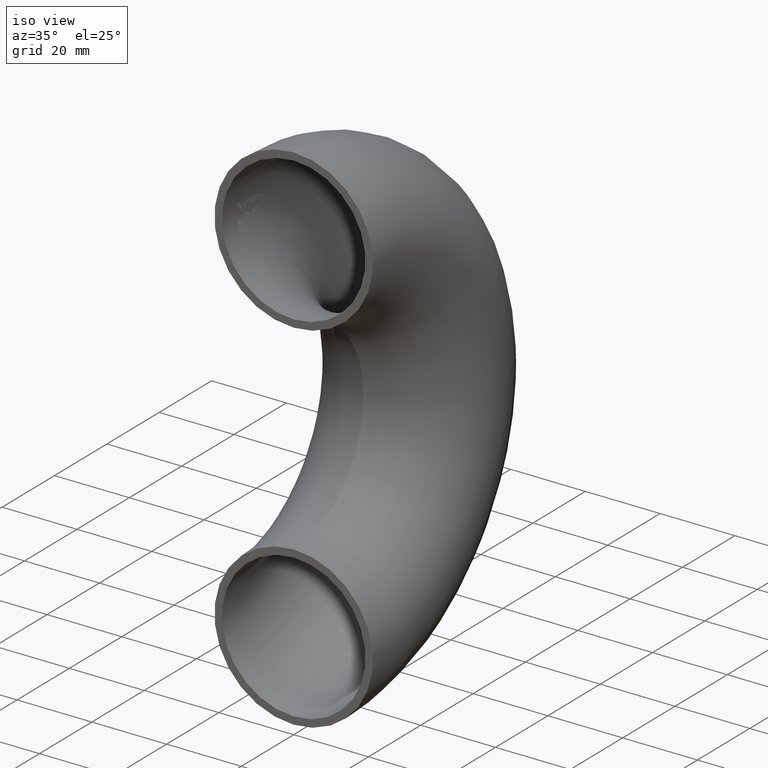
[diagram: clean part render]
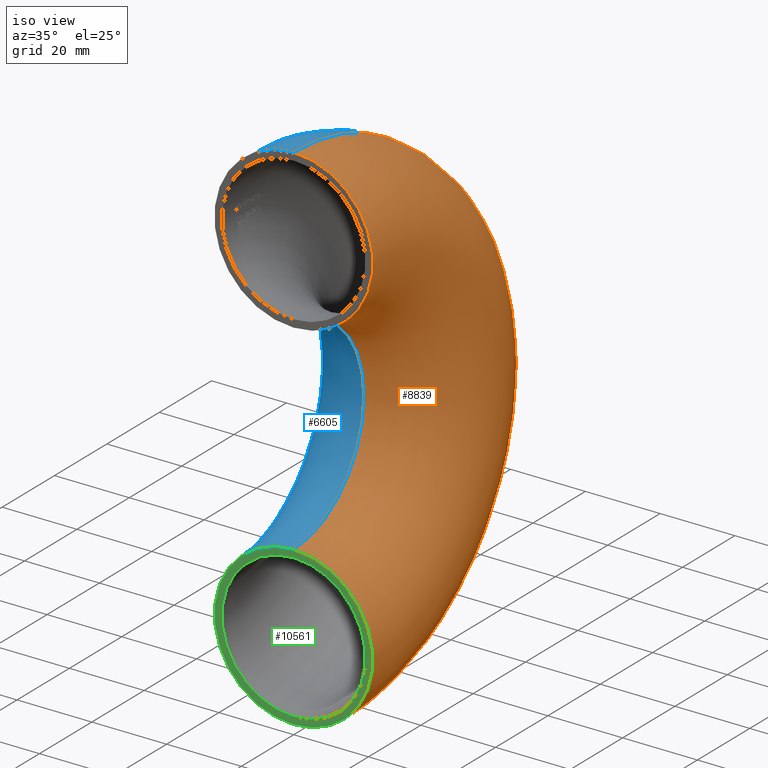
[diagram: same view with three faces highlighted in distinct colors, each labeled with its STEP entity id]
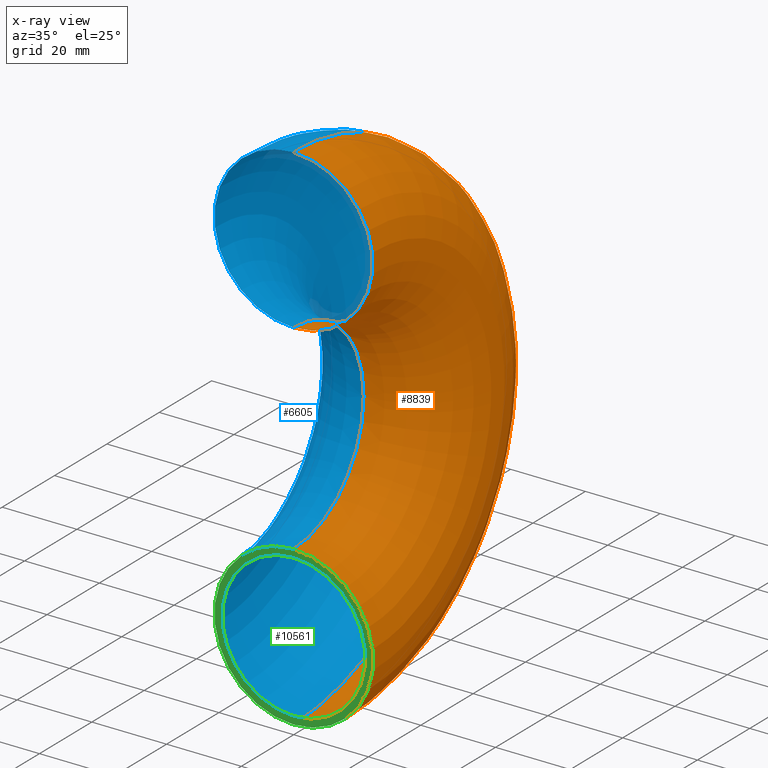
[diagram: x-ray of the same camera — body ghosted, the three highlighted faces saturated]
A machine part, iso view with three faces highlighted in distinct colors.
The next image is the same camera in x-ray (body ghosted, the three faces saturated) — at least one of them is partly hidden behind the body in this view.
Their STEP definitions:

[orange] entity #8839 — the highlighted toroidal blend (fillet) surface has major radius 48 mm and minor (blend) radius 21.2 mm.
#10 = DIRECTION ( 'NONE',  ( -1.000000000000000000, -0.0000000000000000000, -0.0000000000000000000 ) ) ;
#110 = DIRECTION ( 'NONE',  ( 0.0000000000000000000, 0.0000000000000000000, 1.000000000000000000 ) ) ;
#444 = CIRCLE ( 'NONE', #1873, 69.20000000000000300 ) ;
#579 = EDGE_CURVE ( 'NONE', #6747, #1486, #5435, .T. ) ;
#657 = DIRECTION ( 'NONE',  ( 0.0000000000000000000, 0.0000000000000000000, 1.000000000000000000 ) ) ;
#784 = AXIS2_PLACEMENT_3D ( 'NONE', #1788, #3397, #110 ) ;
#1275 = CARTESIAN_POINT ( 'NONE',  ( 0.0000000000000000000, 8.474555850099686100E-015, 69.20000000000000300 ) ) ;
#1328 = CARTESIAN_POINT ( 'NONE',  ( 0.0000000000000000000, 5.878304635907295800E-015, 48.00000000000000000 ) ) ;
#1486 = VERTEX_POINT ( 'NONE', #1275 ) ;
#1788 = CARTESIAN_POINT ( 'NONE',  ( 0.0000000000000000000, 0.0000000000000000000, -48.00000000000000000 ) ) ;
#1873 = AXIS2_PLACEMENT_3D ( 'NONE', #6058, #1886, #8546 ) ;
#1886 = DIRECTION ( 'NONE',  ( -1.000000000000000000, -0.0000000000000000000, -0.0000000000000000000 ) ) ;
#2220 = AXIS2_PLACEMENT_3D ( 'NONE', #6431, #3253, #657 ) ;
#2289 = ORIENTED_EDGE ( 'NONE', *, *, #9533, .F. ) ;
#2656 = ORIENTED_EDGE ( 'NONE', *, *, #579, .F. ) ;
#2867 = TOROIDAL_SURFACE ( 'NONE', #8431, 48.00000000000000000, 21.19999999999999900 ) ;
#3253 = DIRECTION ( 'NONE',  ( -1.000000000000000000, -0.0000000000000000000, -0.0000000000000000000 ) ) ;
#3282 = CARTESIAN_POINT ( 'NONE',  ( 0.0000000000000000000, 0.0000000000000000000, -26.80000000000000100 ) ) ;
#3397 = DIRECTION ( 'NONE',  ( 0.0000000000000000000, 1.000000000000000000, 0.0000000000000000000 ) ) ;
#3644 = FACE_OUTER_BOUND ( 'NONE', #5150, .T. ) ;
#3756 = CIRCLE ( 'NONE', #2220, 26.80000000000000100 ) ;
#4772 = CARTESIAN_POINT ( 'NONE',  ( 0.0000000000000000000, 3.282053421714906600E-015, 26.80000000000000100 ) ) ;
#5150 = EDGE_LOOP ( 'NONE', ( #2289, #2656, #9439, #8908 ) ) ;
#5435 = CIRCLE ( 'NONE', #5785, 21.19999999999999900 ) ;
#5444 = DIRECTION ( 'NONE',  ( 0.0000000000000000000, -1.000000000000000000, 1.224646799147353200E-016 ) ) ;
#5785 = AXIS2_PLACEMENT_3D ( 'NONE', #1328, #5444, #10291 ) ;
#6058 = CARTESIAN_POINT ( 'NONE',  ( 0.0000000000000000000, 0.0000000000000000000, 0.0000000000000000000 ) ) ;
#6431 = CARTESIAN_POINT ( 'NONE',  ( 2.596251214192388800E-015, 0.0000000000000000000, 0.0000000000000000000 ) ) ;
#6617 = CARTESIAN_POINT ( 'NONE',  ( 0.0000000000000000000, 0.0000000000000000000, 0.0000000000000000000 ) ) ;
#6747 = VERTEX_POINT ( 'NONE', #4772 ) ;
#7966 = CIRCLE ( 'NONE', #784, 21.19999999999999900 ) ;
#8380 = EDGE_CURVE ( 'NONE', #6747, #10331, #3756, .T. ) ;
#8431 = AXIS2_PLACEMENT_3D ( 'NONE', #6617, #10, #9873 ) ;
#8546 = DIRECTION ( 'NONE',  ( 0.0000000000000000000, 0.0000000000000000000, 1.000000000000000000 ) ) ;
#8839 = ADVANCED_FACE ( 'NONE', ( #3644 ), #2867, .T. ) ;
#8908 = ORIENTED_EDGE ( 'NONE', *, *, #9223, .T. ) ;
#9223 = EDGE_CURVE ( 'NONE', #10331, #9429, #7966, .T. ) ;
#9429 = VERTEX_POINT ( 'NONE', #10418 ) ;
#9439 = ORIENTED_EDGE ( 'NONE', *, *, #8380, .T. ) ;
#9533 = EDGE_CURVE ( 'NONE', #1486, #9429, #444, .T. ) ;
#9873 = DIRECTION ( 'NONE',  ( 0.0000000000000000000, 0.0000000000000000000, 1.000000000000000000 ) ) ;
#10291 = DIRECTION ( 'NONE',  ( 0.0000000000000000000, -1.224646799147353200E-016, -1.000000000000000000 ) ) ;
#10331 = VERTEX_POINT ( 'NONE', #3282 ) ;
#10418 = CARTESIAN_POINT ( 'NONE',  ( 0.0000000000000000000, 0.0000000000000000000, -69.20000000000000300 ) ) ;

[blue] entity #6605 — the highlighted toroidal blend (fillet) surface has major radius 48 mm and minor (blend) radius 21.2 mm.
#444 = CIRCLE ( 'NONE', #1873, 69.20000000000000300 ) ;
#657 = DIRECTION ( 'NONE',  ( 0.0000000000000000000, 0.0000000000000000000, 1.000000000000000000 ) ) ;
#1275 = CARTESIAN_POINT ( 'NONE',  ( 0.0000000000000000000, 8.474555850099686100E-015, 69.20000000000000300 ) ) ;
#1486 = VERTEX_POINT ( 'NONE', #1275 ) ;
#1873 = AXIS2_PLACEMENT_3D ( 'NONE', #6058, #1886, #8546 ) ;
#1886 = DIRECTION ( 'NONE',  ( -1.000000000000000000, -0.0000000000000000000, -0.0000000000000000000 ) ) ;
#2220 = AXIS2_PLACEMENT_3D ( 'NONE', #6431, #3253, #657 ) ;
#2332 = EDGE_LOOP ( 'NONE', ( #9689, #9346, #4488, #5154 ) ) ;
#2499 = DIRECTION ( 'NONE',  ( 0.0000000000000000000, 0.0000000000000000000, 1.000000000000000000 ) ) ;
#2696 = DIRECTION ( 'NONE',  ( 0.0000000000000000000, -1.224646799147353200E-016, -1.000000000000000000 ) ) ;
#3204 = EDGE_CURVE ( 'NONE', #9429, #10331, #10134, .T. ) ;
#3253 = DIRECTION ( 'NONE',  ( -1.000000000000000000, -0.0000000000000000000, -0.0000000000000000000 ) ) ;
#3282 = CARTESIAN_POINT ( 'NONE',  ( 0.0000000000000000000, 0.0000000000000000000, -26.80000000000000100 ) ) ;
#3599 = DIRECTION ( 'NONE',  ( -1.000000000000000000, -0.0000000000000000000, -0.0000000000000000000 ) ) ;
#3756 = CIRCLE ( 'NONE', #2220, 26.80000000000000100 ) ;
#4488 = ORIENTED_EDGE ( 'NONE', *, *, #3204, .T. ) ;
#4496 = CIRCLE ( 'NONE', #6198, 21.19999999999999900 ) ;
#4772 = CARTESIAN_POINT ( 'NONE',  ( 0.0000000000000000000, 3.282053421714906600E-015, 26.80000000000000100 ) ) ;
#5119 = DIRECTION ( 'NONE',  ( 0.0000000000000000000, -1.000000000000000000, 1.224646799147353200E-016 ) ) ;
#5154 = ORIENTED_EDGE ( 'NONE', *, *, #8380, .F. ) ;
#5821 = EDGE_CURVE ( 'NONE', #1486, #6747, #4496, .T. ) ;
#6058 = CARTESIAN_POINT ( 'NONE',  ( 0.0000000000000000000, 0.0000000000000000000, 0.0000000000000000000 ) ) ;
#6134 = CARTESIAN_POINT ( 'NONE',  ( 0.0000000000000000000, 0.0000000000000000000, 0.0000000000000000000 ) ) ;
#6140 = TOROIDAL_SURFACE ( 'NONE', #9828, 48.00000000000000000, 21.19999999999999900 ) ;
#6198 = AXIS2_PLACEMENT_3D ( 'NONE', #10009, #5119, #2696 ) ;
#6431 = CARTESIAN_POINT ( 'NONE',  ( 2.596251214192388800E-015, 0.0000000000000000000, 0.0000000000000000000 ) ) ;
#6605 = ADVANCED_FACE ( 'NONE', ( #10362 ), #6140, .T. ) ;
#6747 = VERTEX_POINT ( 'NONE', #4772 ) ;
#6986 = CARTESIAN_POINT ( 'NONE',  ( 0.0000000000000000000, 0.0000000000000000000, -48.00000000000000000 ) ) ;
#7506 = AXIS2_PLACEMENT_3D ( 'NONE', #6986, #8616, #2499 ) ;
#8380 = EDGE_CURVE ( 'NONE', #6747, #10331, #3756, .T. ) ;
#8546 = DIRECTION ( 'NONE',  ( 0.0000000000000000000, 0.0000000000000000000, 1.000000000000000000 ) ) ;
#8616 = DIRECTION ( 'NONE',  ( 0.0000000000000000000, 1.000000000000000000, 0.0000000000000000000 ) ) ;
#9346 = ORIENTED_EDGE ( 'NONE', *, *, #9533, .T. ) ;
#9429 = VERTEX_POINT ( 'NONE', #10418 ) ;
#9533 = EDGE_CURVE ( 'NONE', #1486, #9429, #444, .T. ) ;
#9689 = ORIENTED_EDGE ( 'NONE', *, *, #5821, .F. ) ;
#9828 = AXIS2_PLACEMENT_3D ( 'NONE', #6134, #3599, #10137 ) ;
#10009 = CARTESIAN_POINT ( 'NONE',  ( 0.0000000000000000000, 5.878304635907295800E-015, 48.00000000000000000 ) ) ;
#10134 = CIRCLE ( 'NONE', #7506, 21.19999999999999900 ) ;
#10137 = DIRECTION ( 'NONE',  ( 0.0000000000000000000, 0.0000000000000000000, 1.000000000000000000 ) ) ;
#10331 = VERTEX_POINT ( 'NONE', #3282 ) ;
#10362 = FACE_OUTER_BOUND ( 'NONE', #2332, .T. ) ;
#10418 = CARTESIAN_POINT ( 'NONE',  ( 0.0000000000000000000, 0.0000000000000000000, -69.20000000000000300 ) ) ;

[green] entity #10561 — the highlighted planar face has unit normal (0, 1, 0).
#110 = DIRECTION ( 'NONE',  ( 0.0000000000000000000, 0.0000000000000000000, 1.000000000000000000 ) ) ;
#300 = FACE_BOUND ( 'NONE', #10583, .T. ) ;
#431 = FACE_OUTER_BOUND ( 'NONE', #4043, .T. ) ;
#784 = AXIS2_PLACEMENT_3D ( 'NONE', #1788, #3397, #110 ) ;
#942 = CARTESIAN_POINT ( 'NONE',  ( 0.0000000000000000000, 0.0000000000000000000, -28.80000000000000100 ) ) ;
#1622 = DIRECTION ( 'NONE',  ( 0.0000000000000000000, -0.0000000000000000000, 1.000000000000000000 ) ) ;
#1788 = CARTESIAN_POINT ( 'NONE',  ( 0.0000000000000000000, 0.0000000000000000000, -48.00000000000000000 ) ) ;
#2351 = CARTESIAN_POINT ( 'NONE',  ( 0.0000000000000000000, 0.0000000000000000000, -48.00000000000000000 ) ) ;
#2499 = DIRECTION ( 'NONE',  ( 0.0000000000000000000, 0.0000000000000000000, 1.000000000000000000 ) ) ;
#3204 = EDGE_CURVE ( 'NONE', #9429, #10331, #10134, .T. ) ;
#3282 = CARTESIAN_POINT ( 'NONE',  ( 0.0000000000000000000, 0.0000000000000000000, -26.80000000000000100 ) ) ;
#3321 = CARTESIAN_POINT ( 'NONE',  ( 0.0000000000000000000, 0.0000000000000000000, -48.00000000000000000 ) ) ;
#3397 = DIRECTION ( 'NONE',  ( 0.0000000000000000000, 1.000000000000000000, 0.0000000000000000000 ) ) ;
#3885 = ORIENTED_EDGE ( 'NONE', *, *, #9223, .F. ) ;
#3981 = PLANE ( 'NONE',  #8159 ) ;
#3985 = CIRCLE ( 'NONE', #5803, 19.20000000000000300 ) ;
#4043 = EDGE_LOOP ( 'NONE', ( #3885, #8021 ) ) ;
#4136 = DIRECTION ( 'NONE',  ( 0.0000000000000000000, 1.000000000000000000, 0.0000000000000000000 ) ) ;
#4696 = AXIS2_PLACEMENT_3D ( 'NONE', #8361, #5971, #6011 ) ;
#5059 = EDGE_CURVE ( 'NONE', #7358, #6208, #3985, .T. ) ;
#5803 = AXIS2_PLACEMENT_3D ( 'NONE', #3321, #4136, #9856 ) ;
#5971 = DIRECTION ( 'NONE',  ( 0.0000000000000000000, 1.000000000000000000, 0.0000000000000000000 ) ) ;
#6011 = DIRECTION ( 'NONE',  ( 0.0000000000000000000, 0.0000000000000000000, 1.000000000000000000 ) ) ;
#6208 = VERTEX_POINT ( 'NONE', #942 ) ;
#6273 = CIRCLE ( 'NONE', #4696, 19.20000000000000300 ) ;
#6918 = EDGE_CURVE ( 'NONE', #6208, #7358, #6273, .T. ) ;
#6986 = CARTESIAN_POINT ( 'NONE',  ( 0.0000000000000000000, 0.0000000000000000000, -48.00000000000000000 ) ) ;
#7358 = VERTEX_POINT ( 'NONE', #7485 ) ;
#7476 = ORIENTED_EDGE ( 'NONE', *, *, #5059, .T. ) ;
#7485 = CARTESIAN_POINT ( 'NONE',  ( 0.0000000000000000000, 0.0000000000000000000, -67.20000000000000300 ) ) ;
#7506 = AXIS2_PLACEMENT_3D ( 'NONE', #6986, #8616, #2499 ) ;
#7966 = CIRCLE ( 'NONE', #784, 21.19999999999999900 ) ;
#8021 = ORIENTED_EDGE ( 'NONE', *, *, #3204, .F. ) ;
#8048 = DIRECTION ( 'NONE',  ( 0.0000000000000000000, 1.000000000000000000, 0.0000000000000000000 ) ) ;
#8159 = AXIS2_PLACEMENT_3D ( 'NONE', #2351, #8048, #1622 ) ;
#8361 = CARTESIAN_POINT ( 'NONE',  ( 0.0000000000000000000, 0.0000000000000000000, -48.00000000000000000 ) ) ;
#8616 = DIRECTION ( 'NONE',  ( 0.0000000000000000000, 1.000000000000000000, 0.0000000000000000000 ) ) ;
#9223 = EDGE_CURVE ( 'NONE', #10331, #9429, #7966, .T. ) ;
#9429 = VERTEX_POINT ( 'NONE', #10418 ) ;
#9856 = DIRECTION ( 'NONE',  ( 0.0000000000000000000, 0.0000000000000000000, 1.000000000000000000 ) ) ;
#10134 = CIRCLE ( 'NONE', #7506, 21.19999999999999900 ) ;
#10312 = ORIENTED_EDGE ( 'NONE', *, *, #6918, .T. ) ;
#10331 = VERTEX_POINT ( 'NONE', #3282 ) ;
#10418 = CARTESIAN_POINT ( 'NONE',  ( 0.0000000000000000000, 0.0000000000000000000, -69.20000000000000300 ) ) ;
#10561 = ADVANCED_FACE ( 'NONE', ( #300, #431 ), #3981, .F. ) ;
#10583 = EDGE_LOOP ( 'NONE', ( #10312, #7476 ) ) ;